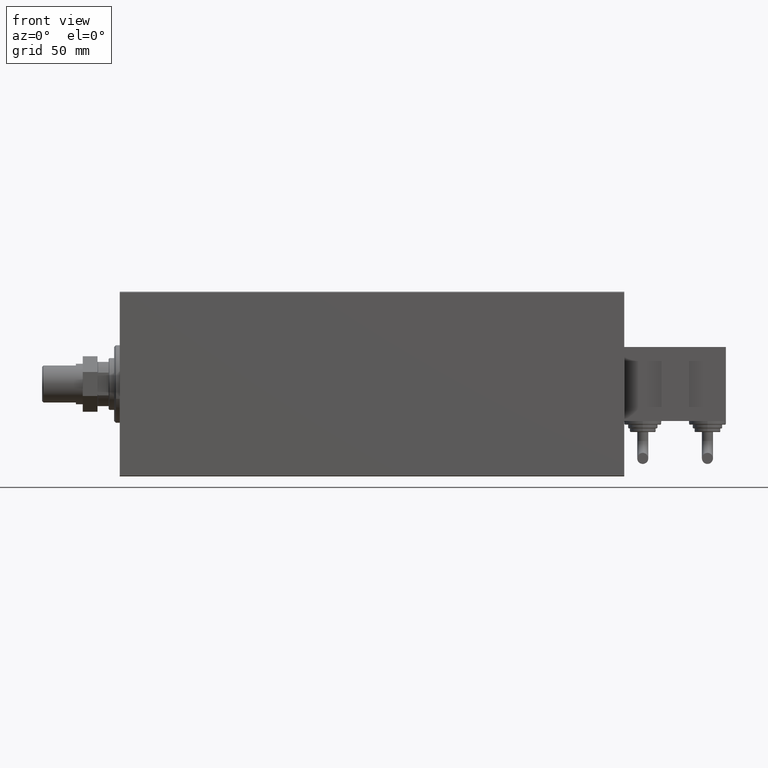
[diagram: clean part render]
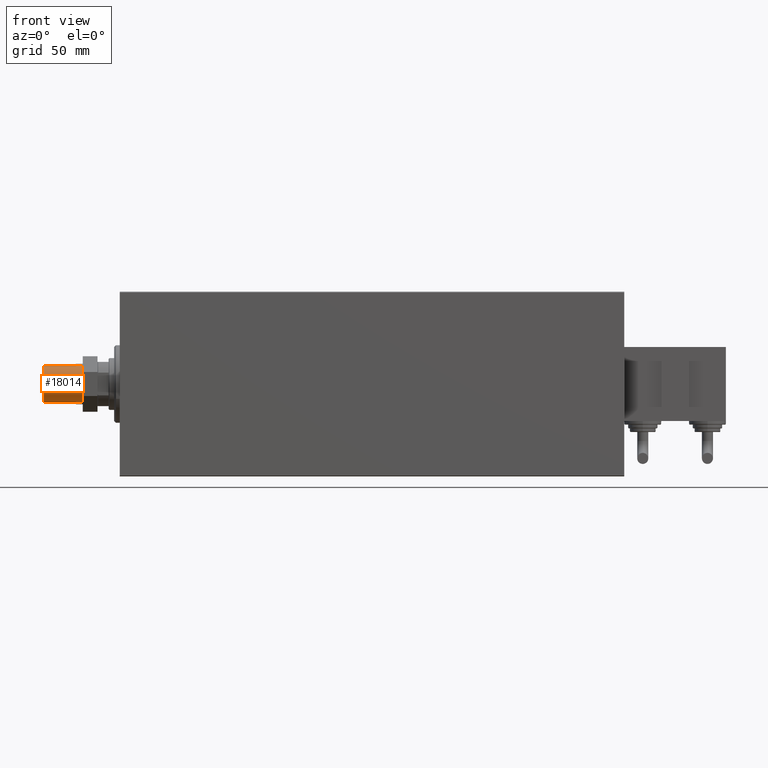
[diagram: same view with one face highlighted and labeled with its STEP entity id]
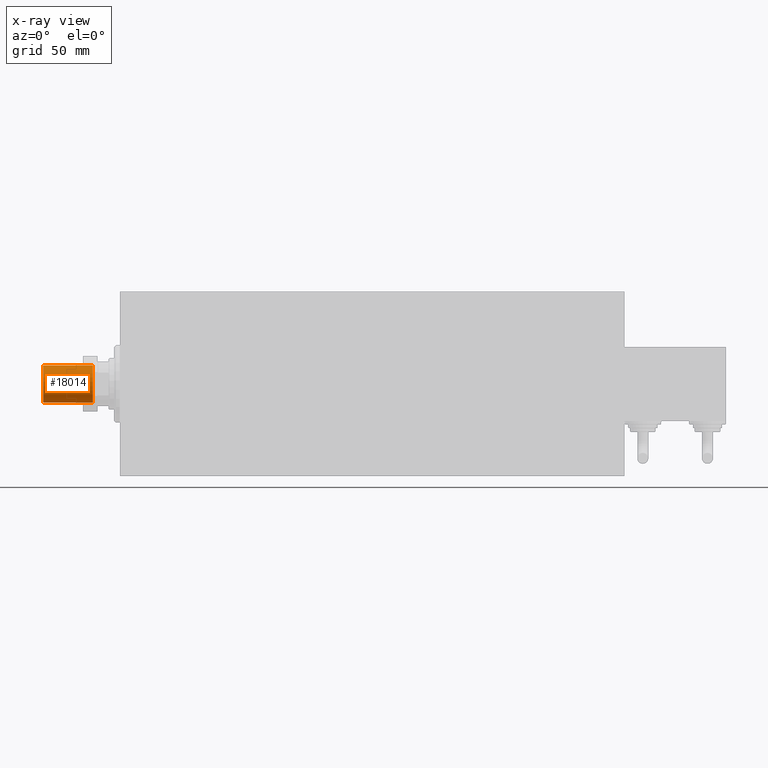
[diagram: x-ray of the same camera — body ghosted, the highlighted face saturated]
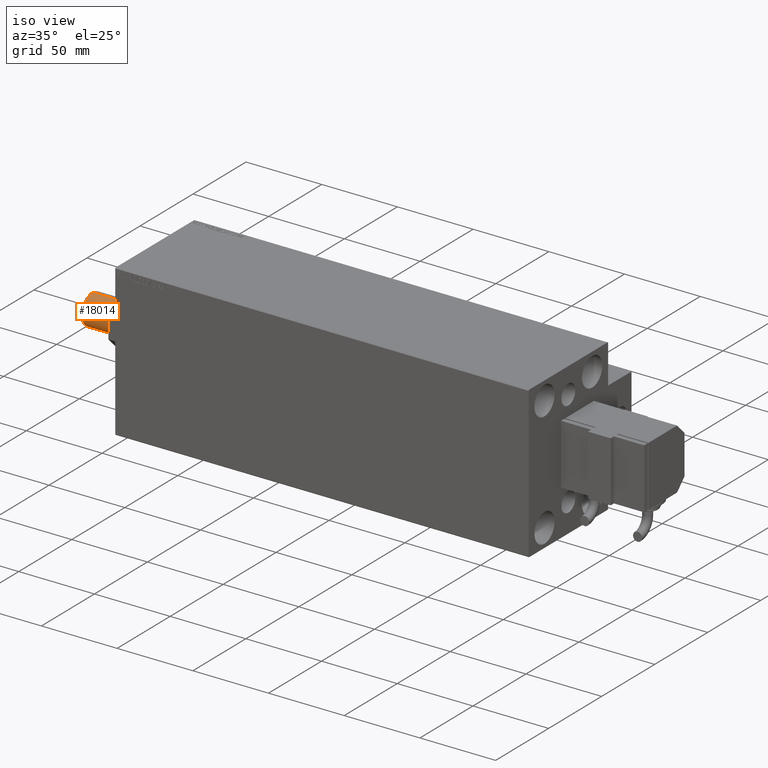
[diagram: same view with one face highlighted and labeled with its STEP entity id]
A machine part, front view. The second image highlights one B-rep face of the part: STEP entity #18014.
The next image is the same camera in x-ray: the body ghosted, the highlighted face saturated — about 0% of this face is hidden behind the body in this view.
A second angle (iso view) of the same face is appended — the face is thin or edge-on in the first view.
In plain terms, the highlighted cylindrical surface (edge-blend (fillet) strip) has radius 10 mm, axis along (-1, -0, 0).
Its self-contained STEP definition (entity closure, byte-faithful):
#367 = LINE ( 'NONE', #23305, #13454 ) ;
#485 = CARTESIAN_POINT ( 'NONE',  ( 0.000000000000000000, 0.000000000000000000, 0.7999999999999986011 ) ) ;
#865 = VERTEX_POINT ( 'NONE', #30620 ) ;
#3455 = VERTEX_POINT ( 'NONE', #18882 ) ;
#3538 = EDGE_CURVE ( 'NONE', #46727, #18570, #43053, .T. ) ;
#3626 = AXIS2_PLACEMENT_3D ( 'NONE', #485, #43063, #15865 ) ;
#4570 = AXIS2_PLACEMENT_3D ( 'NONE', #44521, #24626, #44030 ) ;
#5376 = DIRECTION ( 'NONE',  ( -1.000000000000000000, 0.000000000000000000, 0.000000000000000000 ) ) ;
#8143 = EDGE_CURVE ( 'NONE', #3455, #865, #42397, .T. ) ;
#8401 = FACE_OUTER_BOUND ( 'NONE', #25734, .T. ) ;
#11209 = AXIS2_PLACEMENT_3D ( 'NONE', #42921, #20238, #5376 ) ;
#12529 = EDGE_CURVE ( 'NONE', #865, #18570, #367, .T. ) ;
#13093 = VECTOR ( 'NONE', #32868, 1000.000000000000000 ) ;
#13454 = VECTOR ( 'NONE', #39161, 1000.000000000000000 ) ;
#14798 = ORIENTED_EDGE ( 'NONE', *, *, #12529, .F. ) ;
#15688 = CARTESIAN_POINT ( 'NONE',  ( -10.00000000000000000, 0.000000000000000000, 0.7999999999999986011 ) ) ;
#15865 = DIRECTION ( 'NONE',  ( 1.000000000000000000, 0.000000000000000000, 0.000000000000000000 ) ) ;
#18014 = ADVANCED_FACE ( 'NONE', ( #8401 ), #47200, .T. ) ;
#18570 = VERTEX_POINT ( 'NONE', #47026 ) ;
#18882 = CARTESIAN_POINT ( 'NONE',  ( -10.00000000000000000, 0.000000000000000000, 27.50000000000000000 ) ) ;
#19275 = ORIENTED_EDGE ( 'NONE', *, *, #45118, .T. ) ;
#20238 = DIRECTION ( 'NONE',  ( -0.000000000000000000, -0.000000000000000000, -1.000000000000000000 ) ) ;
#22805 = ORIENTED_EDGE ( 'NONE', *, *, #8143, .F. ) ;
#23305 = CARTESIAN_POINT ( 'NONE',  ( 10.00000000000000000, 1.224646799147353256E-15, 27.50000000000000000 ) ) ;
#24626 = DIRECTION ( 'NONE',  ( 0.000000000000000000, 0.000000000000000000, 1.000000000000000000 ) ) ;
#25734 = EDGE_LOOP ( 'NONE', ( #14798, #22805, #19275, #30790 ) ) ;
#26059 = CARTESIAN_POINT ( 'NONE',  ( -10.00000000000000000, 0.000000000000000000, 27.50000000000000000 ) ) ;
#30620 = CARTESIAN_POINT ( 'NONE',  ( 10.00000000000000000, 1.224646799147353256E-15, 27.50000000000000000 ) ) ;
#30790 = ORIENTED_EDGE ( 'NONE', *, *, #3538, .T. ) ;
#32868 = DIRECTION ( 'NONE',  ( -0.000000000000000000, -0.000000000000000000, -1.000000000000000000 ) ) ;
#37380 = LINE ( 'NONE', #26059, #13093 ) ;
#39161 = DIRECTION ( 'NONE',  ( -0.000000000000000000, -0.000000000000000000, -1.000000000000000000 ) ) ;
#42397 = CIRCLE ( 'NONE', #4570, 10.00000000000000000 ) ;
#42921 = CARTESIAN_POINT ( 'NONE',  ( 0.000000000000000000, 0.000000000000000000, 27.50000000000000000 ) ) ;
#43053 = CIRCLE ( 'NONE', #3626, 10.00000000000000000 ) ;
#43063 = DIRECTION ( 'NONE',  ( -0.000000000000000000, -0.000000000000000000, 1.000000000000000000 ) ) ;
#44030 = DIRECTION ( 'NONE',  ( 1.000000000000000000, 0.000000000000000000, 0.000000000000000000 ) ) ;
#44521 = CARTESIAN_POINT ( 'NONE',  ( 0.000000000000000000, 0.000000000000000000, 27.50000000000000000 ) ) ;
#45118 = EDGE_CURVE ( 'NONE', #3455, #46727, #37380, .T. ) ;
#46727 = VERTEX_POINT ( 'NONE', #15688 ) ;
#47026 = CARTESIAN_POINT ( 'NONE',  ( 10.00000000000000000, 1.224646799147353256E-15, 0.7999999999999986011 ) ) ;
#47200 = CYLINDRICAL_SURFACE ( 'NONE', #11209, 10.00000000000000000 ) ;